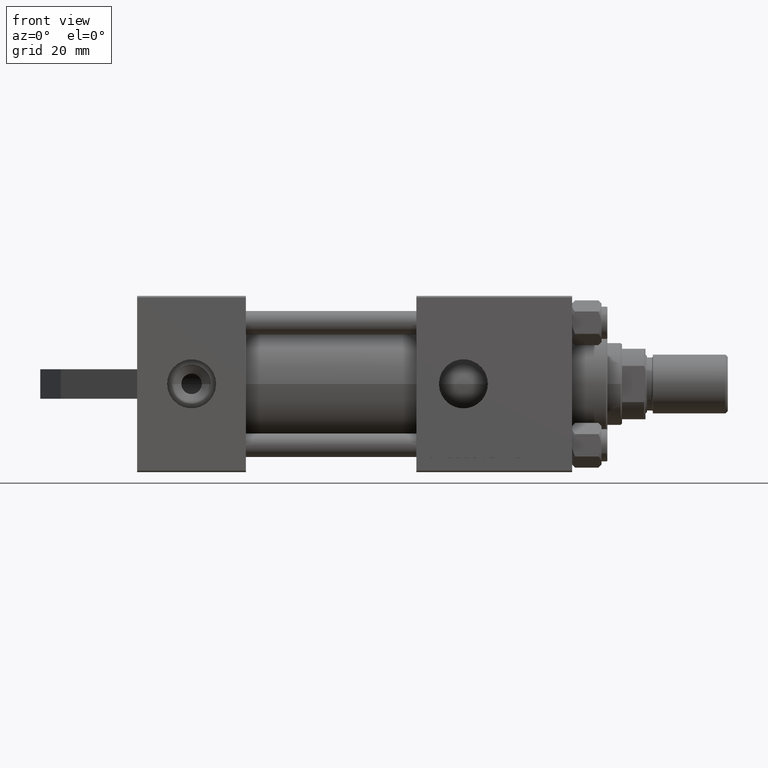
[diagram: clean part render]
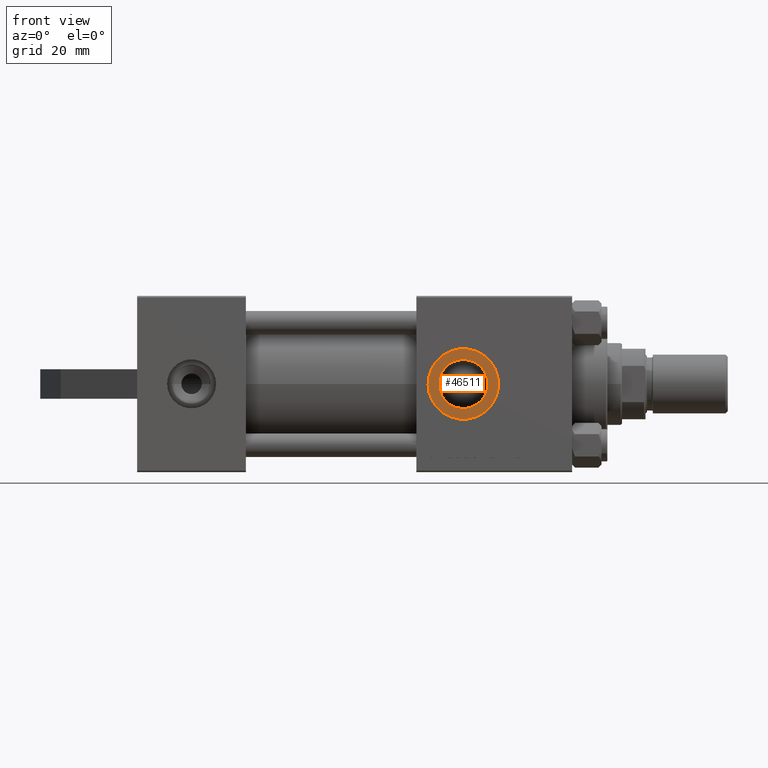
[diagram: same view with one face highlighted and labeled with its STEP entity id]
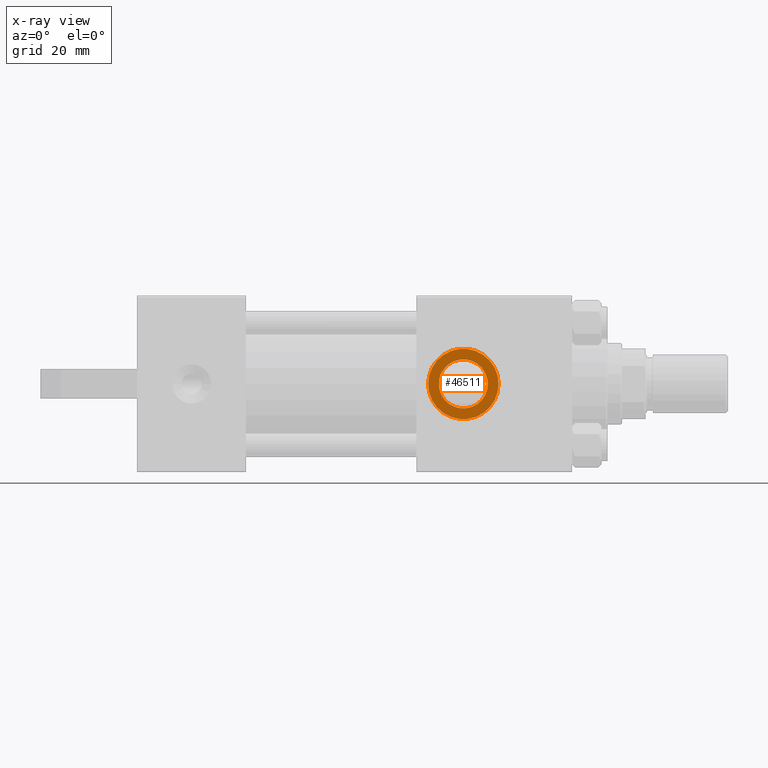
[diagram: x-ray of the same camera — body ghosted, the highlighted face saturated]
A machine part, front view. The second image highlights one B-rep face of the part: STEP entity #46511.
The next image is the same camera in x-ray: the body ghosted, the highlighted face saturated — about 0% of this face is hidden behind the body in this view.
In plain terms, the highlighted planar face has unit normal (0, -1, 0).
Its self-contained STEP definition (entity closure, byte-faithful):
#1869 = DIRECTION ( 'NONE',  ( 0.000000000000000000, 0.000000000000000000, 1.000000000000000000 ) ) ;
#2802 = VERTEX_POINT ( 'NONE', #30507 ) ;
#4562 = ORIENTED_EDGE ( 'NONE', *, *, #45001, .T. ) ;
#5551 = ORIENTED_EDGE ( 'NONE', *, *, #17174, .T. ) ;
#6630 = EDGE_CURVE ( 'NONE', #7370, #19375, #46176, .T. ) ;
#7228 = PLANE ( 'NONE',  #36652 ) ;
#7370 = VERTEX_POINT ( 'NONE', #45388 ) ;
#9022 = DIRECTION ( 'NONE',  ( 1.000000000000000000, 0.000000000000000000, 0.000000000000000000 ) ) ;
#9627 = CIRCLE ( 'NONE', #34408, 11.99999999999999645 ) ;
#9731 = AXIS2_PLACEMENT_3D ( 'NONE', #23774, #30599, #9022 ) ;
#10985 = FACE_OUTER_BOUND ( 'NONE', #23156, .T. ) ;
#14990 = CIRCLE ( 'NONE', #27000, 8.330000000000003624 ) ;
#17174 = EDGE_CURVE ( 'NONE', #2802, #21865, #25400, .T. ) ;
#17332 = FACE_BOUND ( 'NONE', #44378, .T. ) ;
#19375 = VERTEX_POINT ( 'NONE', #38833 ) ;
#21865 = VERTEX_POINT ( 'NONE', #39524 ) ;
#23156 = EDGE_LOOP ( 'NONE', ( #25505, #24609 ) ) ;
#23774 = CARTESIAN_POINT ( 'NONE',  ( 111.0000000000000000, -3.469446951953613794E-15, 29.79999999999999716 ) ) ;
#24609 = ORIENTED_EDGE ( 'NONE', *, *, #6630, .T. ) ;
#25041 = DIRECTION ( 'NONE',  ( 1.000000000000000000, 0.000000000000000000, -0.000000000000000000 ) ) ;
#25281 = DIRECTION ( 'NONE',  ( 0.000000000000000000, 0.000000000000000000, 1.000000000000000000 ) ) ;
#25400 = CIRCLE ( 'NONE', #9731, 8.330000000000003624 ) ;
#25505 = ORIENTED_EDGE ( 'NONE', *, *, #40381, .T. ) ;
#25551 = CARTESIAN_POINT ( 'NONE',  ( 111.0000000000000000, -3.469446951953613794E-15, 29.79999999999999716 ) ) ;
#27000 = AXIS2_PLACEMENT_3D ( 'NONE', #25551, #29068, #43473 ) ;
#28111 = DIRECTION ( 'NONE',  ( 0.000000000000000000, 0.000000000000000000, 1.000000000000000000 ) ) ;
#29068 = DIRECTION ( 'NONE',  ( -0.000000000000000000, -0.000000000000000000, -1.000000000000000000 ) ) ;
#30507 = CARTESIAN_POINT ( 'NONE',  ( 102.6700000000000017, -3.469446951953613794E-15, 29.79999999999999716 ) ) ;
#30599 = DIRECTION ( 'NONE',  ( -0.000000000000000000, -0.000000000000000000, -1.000000000000000000 ) ) ;
#34408 = AXIS2_PLACEMENT_3D ( 'NONE', #43206, #25281, #36112 ) ;
#36112 = DIRECTION ( 'NONE',  ( 1.000000000000000000, 0.000000000000000000, 0.000000000000000000 ) ) ;
#36652 = AXIS2_PLACEMENT_3D ( 'NONE', #46271, #28111, #25041 ) ;
#37600 = DIRECTION ( 'NONE',  ( 1.000000000000000000, 0.000000000000000000, 0.000000000000000000 ) ) ;
#38833 = CARTESIAN_POINT ( 'NONE',  ( 123.0000000000000000, -3.469446951953613794E-15, 29.79999999999999716 ) ) ;
#39524 = CARTESIAN_POINT ( 'NONE',  ( 119.3300000000000125, -2.449316168263869821E-15, 29.79999999999999716 ) ) ;
#40381 = EDGE_CURVE ( 'NONE', #19375, #7370, #9627, .T. ) ;
#40904 = CARTESIAN_POINT ( 'NONE',  ( 111.0000000000000000, -3.469446951953613794E-15, 29.79999999999999716 ) ) ;
#43206 = CARTESIAN_POINT ( 'NONE',  ( 111.0000000000000000, -3.469446951953613794E-15, 29.79999999999999716 ) ) ;
#43473 = DIRECTION ( 'NONE',  ( 1.000000000000000000, 0.000000000000000000, 0.000000000000000000 ) ) ;
#44378 = EDGE_LOOP ( 'NONE', ( #5551, #4562 ) ) ;
#45001 = EDGE_CURVE ( 'NONE', #21865, #2802, #14990, .T. ) ;
#45388 = CARTESIAN_POINT ( 'NONE',  ( 99.00000000000000000, -1.999870792976792017E-15, 29.79999999999999716 ) ) ;
#46137 = AXIS2_PLACEMENT_3D ( 'NONE', #40904, #1869, #37600 ) ;
#46176 = CIRCLE ( 'NONE', #46137, 11.99999999999999645 ) ;
#46271 = CARTESIAN_POINT ( 'NONE',  ( 111.0000000000000000, -3.469446951953613794E-15, 29.79999999999999716 ) ) ;
#46511 = ADVANCED_FACE ( 'NONE', ( #17332, #10985 ), #7228, .T. ) ;